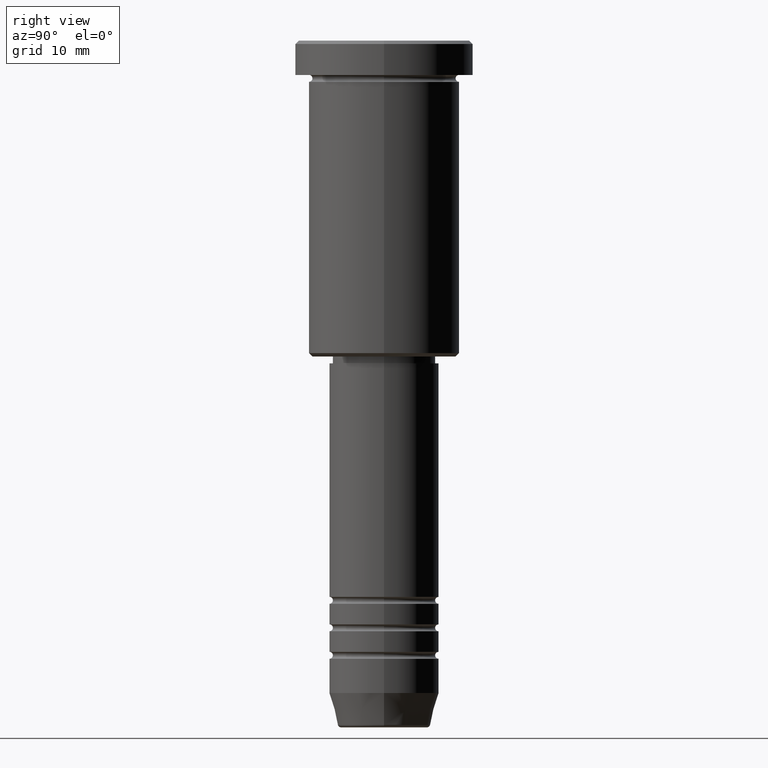
[diagram: clean part render]
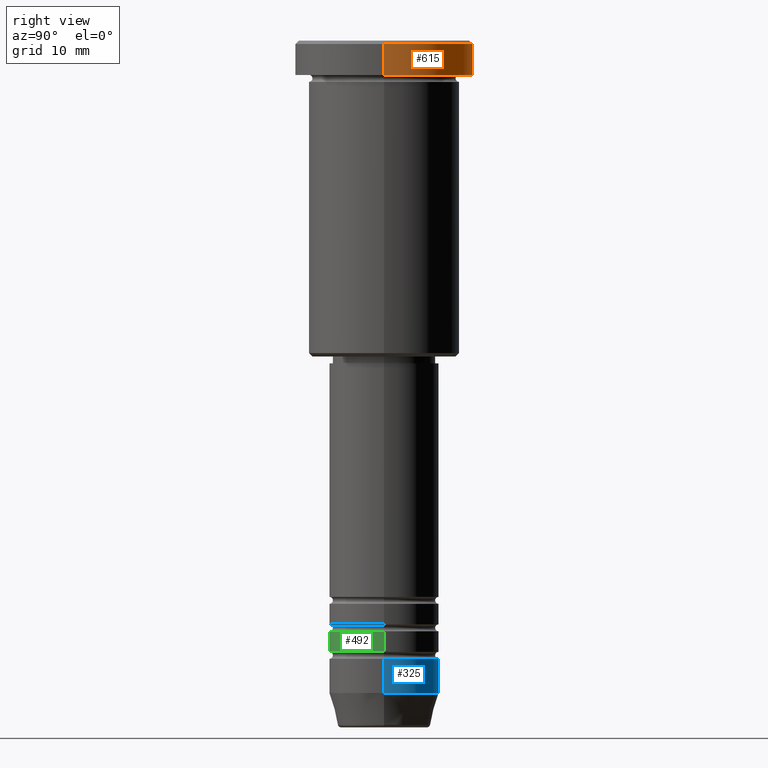
[diagram: same view with three faces highlighted in distinct colors, each labeled with its STEP entity id]
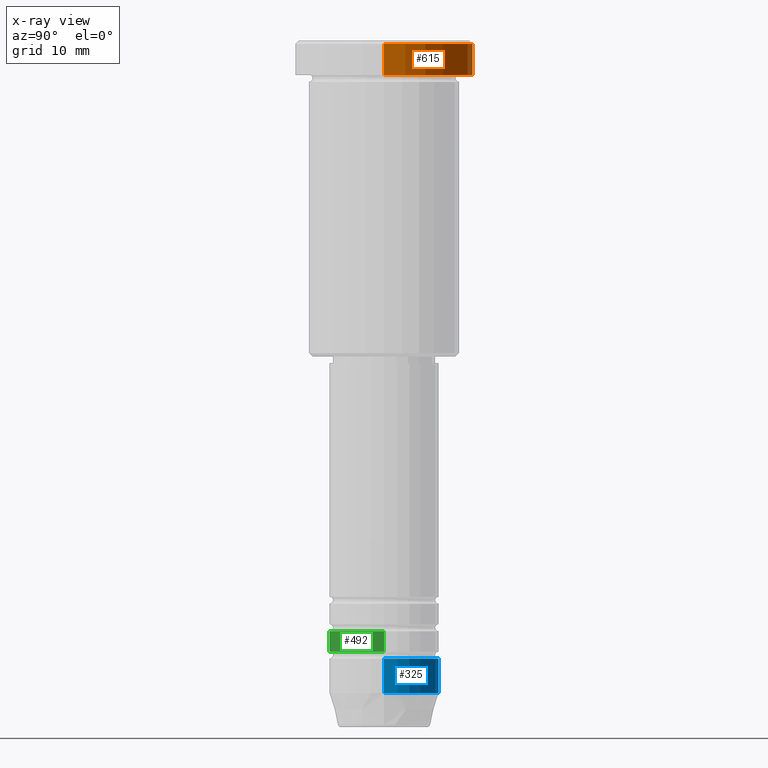
[diagram: x-ray of the same camera — body ghosted, the three highlighted faces saturated]
A machine part, right view with three faces highlighted in distinct colors.
The next image is the same camera in x-ray (body ghosted, the three faces saturated) — at least one of them is partly hidden behind the body in this view.
Their STEP definitions:

[orange] entity #615 — the highlighted cylindrical surface (partial cylindrical patch) has radius 13 mm, axis along (-0, -0, 1).
#1 = CARTESIAN_POINT ( 'NONE',  ( 13.00000000000000000, 0.000000000000000000, -5.000000000000000000 ) ) ;
#8 = AXIS2_PLACEMENT_3D ( 'NONE', #540, #905, #807 ) ;
#26 = ORIENTED_EDGE ( 'NONE', *, *, #666, .T. ) ;
#80 = CARTESIAN_POINT ( 'NONE',  ( 0.000000000000000000, 0.000000000000000000, 0.000000000000000000 ) ) ;
#126 = CARTESIAN_POINT ( 'NONE',  ( -13.00000000000000000, 1.592040838891559095E-15, -0.5000000000000073275 ) ) ;
#134 = VECTOR ( 'NONE', #776, 1000.000000000000000 ) ;
#137 = AXIS2_PLACEMENT_3D ( 'NONE', #1035, #404, #769 ) ;
#149 = CARTESIAN_POINT ( 'NONE',  ( -13.00000000000000000, 1.592040838891559095E-15, -5.000000000000000000 ) ) ;
#168 = EDGE_CURVE ( 'NONE', #809, #928, #1021, .T. ) ;
#179 = CIRCLE ( 'NONE', #137, 13.00000000000000000 ) ;
#212 = ORIENTED_EDGE ( 'NONE', *, *, #817, .T. ) ;
#234 = EDGE_CURVE ( 'NONE', #1113, #928, #508, .T. ) ;
#278 = VERTEX_POINT ( 'NONE', #149 ) ;
#377 = DIRECTION ( 'NONE',  ( -0.000000000000000000, -0.000000000000000000, 1.000000000000000000 ) ) ;
#404 = DIRECTION ( 'NONE',  ( -0.000000000000000000, -0.000000000000000000, 1.000000000000000000 ) ) ;
#417 = CARTESIAN_POINT ( 'NONE',  ( 13.00000000000000000, 0.000000000000000000, -0.5000000000000073275 ) ) ;
#439 = DIRECTION ( 'NONE',  ( -0.000000000000000000, -0.000000000000000000, 1.000000000000000000 ) ) ;
#459 = ORIENTED_EDGE ( 'NONE', *, *, #168, .T. ) ;
#505 = CYLINDRICAL_SURFACE ( 'NONE', #560, 13.00000000000000000 ) ;
#508 = LINE ( 'NONE', #967, #134 ) ;
#540 = CARTESIAN_POINT ( 'NONE',  ( 0.000000000000000000, 0.000000000000000000, -0.5000000000000073275 ) ) ;
#548 = LINE ( 'NONE', #639, #834 ) ;
#560 = AXIS2_PLACEMENT_3D ( 'NONE', #80, #439, #977 ) ;
#614 = FACE_OUTER_BOUND ( 'NONE', #840, .T. ) ;
#615 = ADVANCED_FACE ( 'NONE', ( #614 ), #505, .T. ) ;
#639 = CARTESIAN_POINT ( 'NONE',  ( -13.00000000000000000, 1.592040838891559095E-15, 0.000000000000000000 ) ) ;
#666 = EDGE_CURVE ( 'NONE', #278, #809, #548, .T. ) ;
#769 = DIRECTION ( 'NONE',  ( 1.000000000000000000, 0.000000000000000000, 0.000000000000000000 ) ) ;
#776 = DIRECTION ( 'NONE',  ( -0.000000000000000000, -0.000000000000000000, 1.000000000000000000 ) ) ;
#807 = DIRECTION ( 'NONE',  ( 1.000000000000000000, 0.000000000000000000, 0.000000000000000000 ) ) ;
#809 = VERTEX_POINT ( 'NONE', #126 ) ;
#817 = EDGE_CURVE ( 'NONE', #1113, #278, #179, .T. ) ;
#834 = VECTOR ( 'NONE', #377, 1000.000000000000000 ) ;
#840 = EDGE_LOOP ( 'NONE', ( #212, #26, #459, #1111 ) ) ;
#905 = DIRECTION ( 'NONE',  ( 0.000000000000000000, 0.000000000000000000, -1.000000000000000000 ) ) ;
#928 = VERTEX_POINT ( 'NONE', #417 ) ;
#967 = CARTESIAN_POINT ( 'NONE',  ( 13.00000000000000000, 0.000000000000000000, 0.000000000000000000 ) ) ;
#977 = DIRECTION ( 'NONE',  ( 1.000000000000000000, 0.000000000000000000, 0.000000000000000000 ) ) ;
#1021 = CIRCLE ( 'NONE', #8, 13.00000000000000000 ) ;
#1035 = CARTESIAN_POINT ( 'NONE',  ( 0.000000000000000000, 0.000000000000000000, -5.000000000000000000 ) ) ;
#1111 = ORIENTED_EDGE ( 'NONE', *, *, #234, .F. ) ;
#1113 = VERTEX_POINT ( 'NONE', #1 ) ;

[blue] entity #325 — the highlighted cylindrical surface (partial cylindrical patch) has radius 8 mm, axis along (-0, -0, 1).
#22 = DIRECTION ( 'NONE',  ( 1.000000000000000000, 0.000000000000000000, 0.000000000000000000 ) ) ;
#60 = CARTESIAN_POINT ( 'NONE',  ( 8.000000000000000000, 0.000000000000000000, -90.00000000000000000 ) ) ;
#76 = DIRECTION ( 'NONE',  ( 1.000000000000000000, 0.000000000000000000, 0.000000000000000000 ) ) ;
#90 = AXIS2_PLACEMENT_3D ( 'NONE', #546, #180, #76 ) ;
#104 = VERTEX_POINT ( 'NONE', #60 ) ;
#108 = VERTEX_POINT ( 'NONE', #1141 ) ;
#144 = VERTEX_POINT ( 'NONE', #1051 ) ;
#178 = CIRCLE ( 'NONE', #600, 8.000000000000000000 ) ;
#180 = DIRECTION ( 'NONE',  ( -0.000000000000000000, -0.000000000000000000, 1.000000000000000000 ) ) ;
#186 = CARTESIAN_POINT ( 'NONE',  ( 0.000000000000000000, 0.000000000000000000, -90.00000000000000000 ) ) ;
#211 = DIRECTION ( 'NONE',  ( -0.000000000000000000, -0.000000000000000000, 1.000000000000000000 ) ) ;
#214 = EDGE_CURVE ( 'NONE', #144, #108, #1016, .T. ) ;
#253 = ORIENTED_EDGE ( 'NONE', *, *, #723, .T. ) ;
#275 = CYLINDRICAL_SURFACE ( 'NONE', #90, 8.000000000000000000 ) ;
#325 = ADVANCED_FACE ( 'NONE', ( #551 ), #275, .T. ) ;
#374 = CARTESIAN_POINT ( 'NONE',  ( 8.000000000000000000, 0.000000000000000000, 0.000000000000000000 ) ) ;
#400 = VERTEX_POINT ( 'NONE', #473 ) ;
#452 = DIRECTION ( 'NONE',  ( -0.000000000000000000, -0.000000000000000000, 1.000000000000000000 ) ) ;
#458 = DIRECTION ( 'NONE',  ( 1.000000000000000000, 0.000000000000000000, 0.000000000000000000 ) ) ;
#473 = CARTESIAN_POINT ( 'NONE',  ( 8.000000000000000000, 0.000000000000000000, -95.00000000000000000 ) ) ;
#537 = CARTESIAN_POINT ( 'NONE',  ( 0.000000000000000000, 0.000000000000000000, -95.00000000000000000 ) ) ;
#546 = CARTESIAN_POINT ( 'NONE',  ( 0.000000000000000000, 0.000000000000000000, 0.000000000000000000 ) ) ;
#551 = FACE_OUTER_BOUND ( 'NONE', #623, .T. ) ;
#600 = AXIS2_PLACEMENT_3D ( 'NONE', #537, #452, #458 ) ;
#623 = EDGE_LOOP ( 'NONE', ( #253, #849, #910, #934 ) ) ;
#723 = EDGE_CURVE ( 'NONE', #400, #144, #178, .T. ) ;
#743 = DIRECTION ( 'NONE',  ( -0.000000000000000000, -0.000000000000000000, 1.000000000000000000 ) ) ;
#759 = EDGE_CURVE ( 'NONE', #104, #108, #1138, .T. ) ;
#849 = ORIENTED_EDGE ( 'NONE', *, *, #214, .T. ) ;
#888 = LINE ( 'NONE', #374, #1159 ) ;
#910 = ORIENTED_EDGE ( 'NONE', *, *, #759, .F. ) ;
#921 = AXIS2_PLACEMENT_3D ( 'NONE', #186, #211, #22 ) ;
#934 = ORIENTED_EDGE ( 'NONE', *, *, #1095, .F. ) ;
#1016 = LINE ( 'NONE', #1125, #1042 ) ;
#1042 = VECTOR ( 'NONE', #743, 1000.000000000000000 ) ;
#1051 = CARTESIAN_POINT ( 'NONE',  ( -8.000000000000000000, 9.797174393178825657E-16, -95.00000000000000000 ) ) ;
#1095 = EDGE_CURVE ( 'NONE', #400, #104, #888, .T. ) ;
#1125 = CARTESIAN_POINT ( 'NONE',  ( -8.000000000000000000, 9.797174393178825657E-16, 0.000000000000000000 ) ) ;
#1138 = CIRCLE ( 'NONE', #921, 8.000000000000000000 ) ;
#1141 = CARTESIAN_POINT ( 'NONE',  ( -8.000000000000000000, 9.797174393178825657E-16, -90.00000000000000000 ) ) ;
#1159 = VECTOR ( 'NONE', #1178, 1000.000000000000000 ) ;
#1178 = DIRECTION ( 'NONE',  ( -0.000000000000000000, -0.000000000000000000, 1.000000000000000000 ) ) ;

[green] entity #492 — the highlighted cylindrical surface (partial cylindrical patch) has radius 8 mm, axis along (-0, -0, 1).
#15 = ORIENTED_EDGE ( 'NONE', *, *, #845, .T. ) ;
#25 = VERTEX_POINT ( 'NONE', #706 ) ;
#107 = CARTESIAN_POINT ( 'NONE',  ( 8.000000000000000000, 0.000000000000000000, -86.00000000000000000 ) ) ;
#135 = CARTESIAN_POINT ( 'NONE',  ( -8.000000000000000000, 9.797174393178825657E-16, -88.99999999999998579 ) ) ;
#138 = ORIENTED_EDGE ( 'NONE', *, *, #1018, .F. ) ;
#192 = VERTEX_POINT ( 'NONE', #107 ) ;
#200 = DIRECTION ( 'NONE',  ( -0.000000000000000000, -0.000000000000000000, 1.000000000000000000 ) ) ;
#221 = VERTEX_POINT ( 'NONE', #683 ) ;
#224 = VECTOR ( 'NONE', #416, 1000.000000000000000 ) ;
#231 = DIRECTION ( 'NONE',  ( -0.000000000000000000, -0.000000000000000000, 1.000000000000000000 ) ) ;
#261 = CARTESIAN_POINT ( 'NONE',  ( 0.000000000000000000, 0.000000000000000000, 0.000000000000000000 ) ) ;
#297 = VECTOR ( 'NONE', #200, 1000.000000000000000 ) ;
#321 = CARTESIAN_POINT ( 'NONE',  ( 8.000000000000000000, 0.000000000000000000, 0.000000000000000000 ) ) ;
#334 = CARTESIAN_POINT ( 'NONE',  ( 0.000000000000000000, 0.000000000000000000, -86.00000000000000000 ) ) ;
#345 = ORIENTED_EDGE ( 'NONE', *, *, #1052, .F. ) ;
#348 = DIRECTION ( 'NONE',  ( -0.000000000000000000, -0.000000000000000000, 1.000000000000000000 ) ) ;
#405 = EDGE_CURVE ( 'NONE', #221, #192, #949, .T. ) ;
#416 = DIRECTION ( 'NONE',  ( -0.000000000000000000, -0.000000000000000000, 1.000000000000000000 ) ) ;
#422 = CYLINDRICAL_SURFACE ( 'NONE', #582, 8.000000000000000000 ) ;
#492 = ADVANCED_FACE ( 'NONE', ( #1172 ), #422, .T. ) ;
#493 = DIRECTION ( 'NONE',  ( 1.000000000000000000, 0.000000000000000000, 0.000000000000000000 ) ) ;
#547 = LINE ( 'NONE', #913, #297 ) ;
#577 = EDGE_LOOP ( 'NONE', ( #345, #15, #844, #138 ) ) ;
#582 = AXIS2_PLACEMENT_3D ( 'NONE', #261, #877, #1078 ) ;
#683 = CARTESIAN_POINT ( 'NONE',  ( 8.000000000000000000, 0.000000000000000000, -88.99999999999998579 ) ) ;
#706 = CARTESIAN_POINT ( 'NONE',  ( -8.000000000000000000, 9.797174393178825657E-16, -86.00000000000000000 ) ) ;
#710 = DIRECTION ( 'NONE',  ( 1.000000000000000000, 0.000000000000000000, 0.000000000000000000 ) ) ;
#719 = AXIS2_PLACEMENT_3D ( 'NONE', #334, #348, #710 ) ;
#765 = VERTEX_POINT ( 'NONE', #135 ) ;
#844 = ORIENTED_EDGE ( 'NONE', *, *, #405, .T. ) ;
#845 = EDGE_CURVE ( 'NONE', #765, #221, #1085, .T. ) ;
#877 = DIRECTION ( 'NONE',  ( -0.000000000000000000, -0.000000000000000000, 1.000000000000000000 ) ) ;
#913 = CARTESIAN_POINT ( 'NONE',  ( -8.000000000000000000, 9.797174393178825657E-16, 0.000000000000000000 ) ) ;
#949 = LINE ( 'NONE', #321, #224 ) ;
#1018 = EDGE_CURVE ( 'NONE', #25, #192, #1177, .T. ) ;
#1048 = CARTESIAN_POINT ( 'NONE',  ( 0.000000000000000000, 0.000000000000000000, -88.99999999999998579 ) ) ;
#1052 = EDGE_CURVE ( 'NONE', #765, #25, #547, .T. ) ;
#1078 = DIRECTION ( 'NONE',  ( 1.000000000000000000, 0.000000000000000000, 0.000000000000000000 ) ) ;
#1085 = CIRCLE ( 'NONE', #1139, 8.000000000000000000 ) ;
#1139 = AXIS2_PLACEMENT_3D ( 'NONE', #1048, #231, #493 ) ;
#1172 = FACE_OUTER_BOUND ( 'NONE', #577, .T. ) ;
#1177 = CIRCLE ( 'NONE', #719, 8.000000000000000000 ) ;